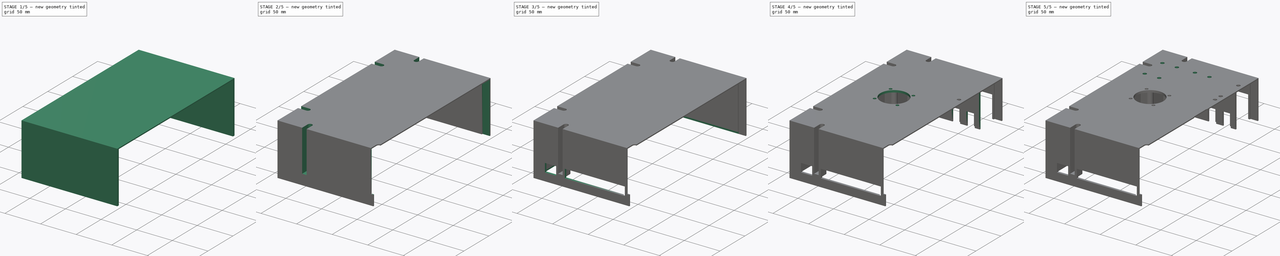
[diagram: build sequence overview — one tinted view per stage of 5, left to right]
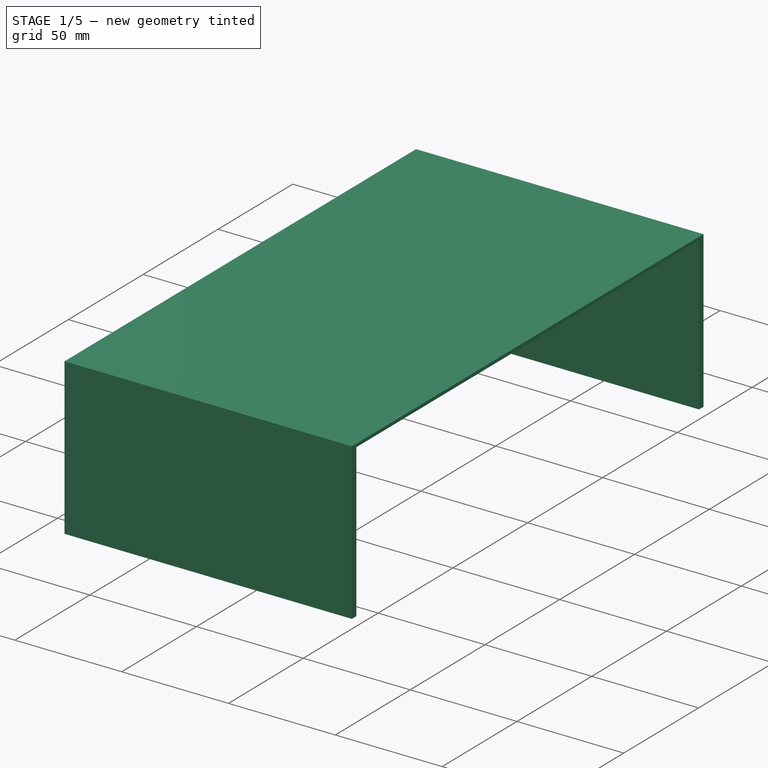
[diagram: stage 1 of 5 — iso view after this stage's code; geometry added in this stage tinted green]
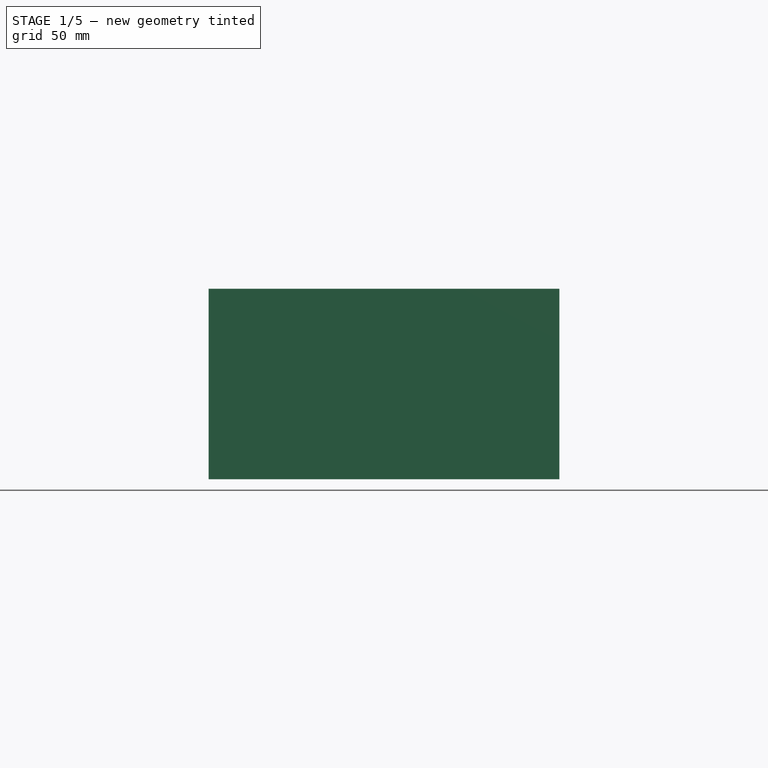
[diagram: stage 1 of 5 — front view after this stage's code; geometry added in this stage tinted green]
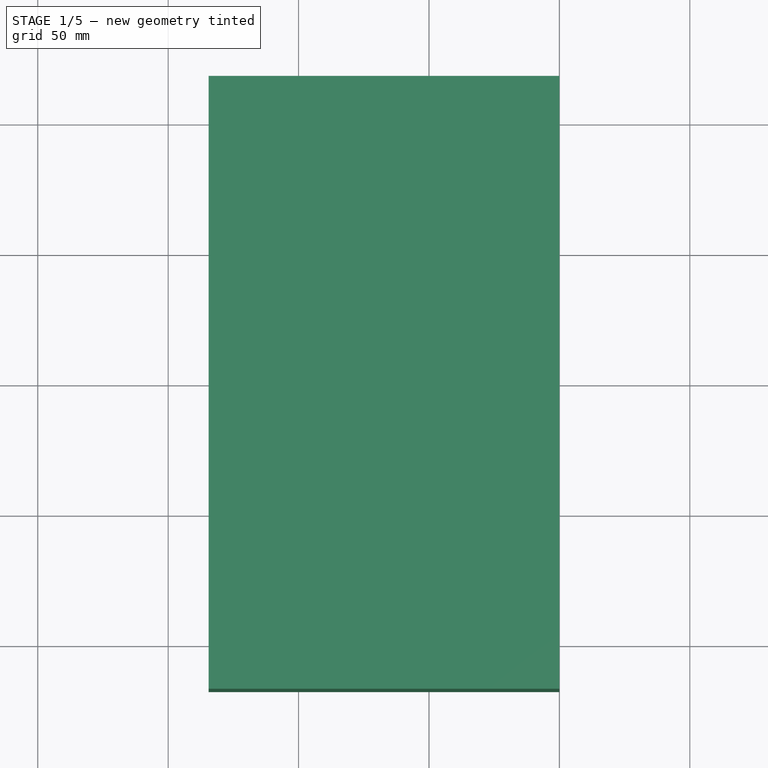
[diagram: stage 1 of 5 — top view after this stage's code; geometry added in this stage tinted green]
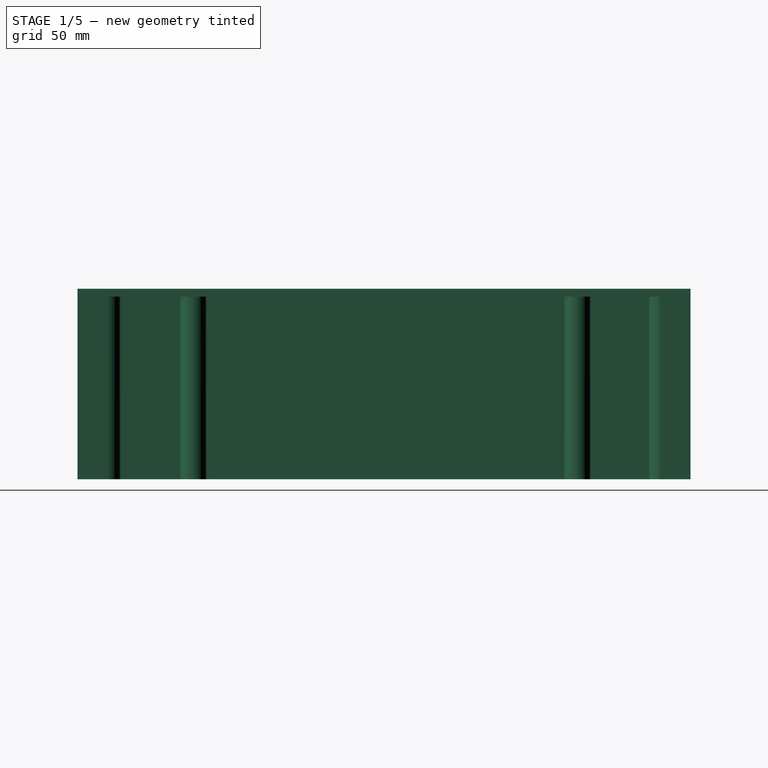
[diagram: stage 1 of 5 — right view after this stage's code; geometry added in this stage tinted green]
FCSTD DOCUMENT  (FreeCAD 0.19R24276 (Git))
Label: switchboard_case_left_top_part
License: All rights reserved
LicenseURL: http://en.wikipedia.org/wiki/All_rights_reserved
objects: Sketcher::SketchObject×17, PartDesign::Pocket×14, PartDesign::Pad×2, PartDesign::Hole×1, PartDesign::Body×1
note: 52 computed .brp shape members not serialized (recipe doc carries the construction recipe); baked Part::Feature solids carry a one-line shape summary decoded from their .brp

FEATURE [Sketcher::SketchObject] Sketch  label="base"
  FullyConstrained = false
  MapMode = 5
  Placement = pos=(0,0,19.5) rot=(1,0,0;3.14159rad)
  sketch-geometry (4):
    g0: LineSegment StartX=-134.5 StartY=117.5 StartZ=0 EndX=0 EndY=117.5 EndZ=0
    g1: LineSegment StartX=0 StartY=117.5 StartZ=0 EndX=0 EndY=-117.5 EndZ=0
    g2: LineSegment StartX=0 StartY=-117.5 StartZ=0 EndX=-134.5 EndY=-117.5 EndZ=0
    g3: LineSegment StartX=-134.5 StartY=-117.5 StartZ=0 EndX=-134.5 EndY=117.5 EndZ=0
  constraints (11):
    c: Coincident(g0,g1)
    c: Coincident(g1,g2)
    c: Coincident(g2,g3)
    c: Coincident(g3,g0)
    c: Horizontal(g0)
    c: Horizontal(g2)
    c: Vertical(g1)
    c: Vertical(g3)
    c: DistanceY(g-1,g0) = 117.5
    c: DistanceY(g2,g-1) = 117.5
    c: DistanceX(g0,g-1) = 134.5
FEATURE [PartDesign::Pad] Pad  label="base_pad"
  Direction = (1,1,1)
  Length = 3
  Length2 = 100
  Placement = pos=(0,0,19.5) rot=(1,0,0;3.14159rad)
  Profile = -> Sketch
  Type = 0
FEATURE [Sketcher::SketchObject] Sketch001  label="junction"
  FullyConstrained = true
  MapMode = 5
  Placement = pos=(0,0,19.5) rot=(0.57735,-0.57735,0.57735;4.18879rad)
  Support = -> [Pad]
  sketch-geometry (4):
    g0: LineSegment StartX=114.5 StartY=3 StartZ=0 EndX=-114.5 EndY=3 EndZ=0
    g1: LineSegment StartX=-114.5 StartY=3 StartZ=0 EndX=-114.5 EndY=1.5 EndZ=0
    g2: LineSegment StartX=-114.5 StartY=1.5 StartZ=0 EndX=114.5 EndY=1.5 EndZ=0
    g3: LineSegment StartX=114.5 StartY=1.5 StartZ=0 EndX=114.5 EndY=3 EndZ=0
  constraints (12):
    c: Coincident(g0,g1)
    c: Coincident(g1,g2)
    c: Coincident(g2,g3)
    c: Coincident(g3,g0)
    c: Horizontal(g0)
    c: Horizontal(g2)
    c: Vertical(g1)
    c: Vertical(g3)
    c: DistanceX(g-1,g2) = 114.5
    c: DistanceX(g1,g-1) = 114.5
    c: DistanceY(g3,g3) = 1.5
    c: DistanceY(g-1,g2) = 1.5
FEATURE [PartDesign::Pocket] Pocket  label="junction_pocket"
  BaseFeature = -> Pad
  Length = 10
  Length2 = 100
  Placement = pos=(0,0,19.5) rot=(1,0,0;3.14159rad)
  Profile = -> Sketch001
  Type = 0
FEATURE [Sketcher::SketchObject] Sketch003  label="wall"
  FullyConstrained = false
  MapMode = 5
  Placement = pos=(0,0,16.5) rot=(1,0,0;3.14159rad)
  Support = -> [Pocket]
  sketch-geometry (24):
    g0: LineSegment StartX=0 StartY=117.5 StartZ=0 EndX=-134.5 EndY=117.5 EndZ=0
    g1: LineSegment StartX=-134.5 StartY=117.5 StartZ=0 EndX=-134.5 EndY=-117.5 EndZ=0
    g2: LineSegment StartX=-134.5 StartY=-117.5 StartZ=0 EndX=0 EndY=-117.5 EndZ=0
    g3: LineSegment StartX=0 StartY=117.5 StartZ=0 EndX=0 EndY=114.5 EndZ=0
    g4: LineSegment StartX=0 StartY=114.5 StartZ=0 EndX=-91.7972 EndY=114.5 EndZ=0
    g5: LineSegment StartX=-131.5 StartY=114.5 StartZ=0 EndX=-131.5 EndY=78.1048 EndZ=0
    g6: LineSegment StartX=-131.5 StartY=-114.5 StartZ=0 EndX=-101.732 EndY=-114.5 EndZ=0
    g7: LineSegment StartX=0 StartY=-117.5 StartZ=0 EndX=4.26e-14 EndY=-114.5 EndZ=0
    g8: ArcOfCircle CenterX=-96.7972 CenterY=106.1 CenterZ=0 NormalX=0 NormalY=0 NormalZ=1 AngleXU=0 Radius=5 StartAngle=3.14159 EndAngle=6.28319
    g9: ArcOfCircle CenterX=-123.1 CenterY=73.1048 CenterZ=0 NormalX=0 NormalY=0 NormalZ=1 AngleXU=0 Radius=5 StartAngle=4.71239 EndAngle=7.85398
    g10: ArcOfCircle CenterX=-123.1 CenterY=-74.1662 CenterZ=0 NormalX=0 NormalY=0 NormalZ=1 AngleXU=0 Radius=5 StartAngle=4.71239 EndAngle=7.85398
    g11: ArcOfCircle CenterX=-96.7577 CenterY=-106.609 CenterZ=0 NormalX=0 NormalY=0 NormalZ=1 AngleXU=0 Radius=5 StartAngle=0.102007 EndAngle=3.03959
    g12: LineSegment StartX=-101.797 StartY=106.1 StartZ=0 EndX=-101.797 EndY=114.5 EndZ=0
    g13: LineSegment StartX=-91.7972 StartY=106.1 StartZ=0 EndX=-91.7972 EndY=114.5 EndZ=0
    g14: LineSegment StartX=-101.797 StartY=114.5 StartZ=0 EndX=-131.5 EndY=114.5 EndZ=0
    g15: LineSegment StartX=-123.1 StartY=78.1048 StartZ=0 EndX=-131.5 EndY=78.1048 EndZ=0
    g16: LineSegment StartX=-123.1 StartY=68.1048 StartZ=0 EndX=-131.5 EndY=68.1048 EndZ=0
    g17: LineSegment StartX=-131.5 StartY=68.1048 StartZ=0 EndX=-131.5 EndY=-69.1662 EndZ=0
    g18: LineSegment StartX=-123.1 StartY=-69.1662 StartZ=0 EndX=-131.5 EndY=-69.1662 EndZ=0
    g19: LineSegment StartX=-123.1 StartY=-79.1662 StartZ=0 EndX=-131.5 EndY=-79.1662 EndZ=0
    g20: LineSegment StartX=-131.5 StartY=-79.1662 StartZ=0 EndX=-131.5 EndY=-114.5 EndZ=0
    g21: LineSegment StartX=-101.732 StartY=-106.1 StartZ=0 EndX=-101.732 EndY=-114.5 EndZ=0
    g22: LineSegment StartX=-91.7837 StartY=-106.1 StartZ=0 EndX=-91.7837 EndY=-114.5 EndZ=0
    g23: LineSegment StartX=-91.7837 StartY=-114.5 StartZ=0 EndX=4.26e-14 EndY=-114.5 EndZ=0
  constraints (62):
    c: PointOnObject(g0,g-2)
    c: Horizontal(g0)
    c: DistanceY(g-1,g0) = 117.5
    c: DistanceX(g0,g0) = 134.5
    c: Coincident(g1,g0)
    c: Vertical(g1)
    c: DistanceY(g1,g1) = 235
    c: Coincident(g2,g1)
    c: PointOnObject(g2,g-2)
    c: Horizontal(g2)
    c: Coincident(g3,g0)
    c: Vertical(g3)
    c: DistanceY(g3,g3) = 3
    c: Coincident(g4,g3)
    c: Horizontal(g4)
    c: DistanceX(g14,g4) = 131.5
    c: Coincident(g5,g14)
    c: Vertical(g5)
    c: DistanceY(g20,g5) = 229
    c: Coincident(g6,g20)
    c: Horizontal(g6)
    c: DistanceX(g6,g23) = 131.5
    c: Coincident(g7,g2)
    c: Coincident(g7,g23)
    c: Radius(g8) = 5
    c: Radius(g9) = 5
    c: Radius(g10) = 5
    c: Radius(g11) = 5
    c: Vertical(g12)
    c: Vertical(g13)
    c: Coincident(g8,g12)
    c: Tangent(g8,g13) = -1.5708
    c: Coincident(g4,g13)
    c: Coincident(g14,g12)
    c: Tangent(g4,g14)
    c: Horizontal(g15)
    c: Horizontal(g16)
    c: Tangent(g9,g16) = 1.5708
    c: Tangent(g9,g15) = -1.5708
    c: Coincident(g5,g15)
    c: Coincident(g17,g16)
    c: Tangent(g5,g17)
    c: Horizontal(g18)
    c: Horizontal(g19)
    c: Tangent(g10,g19) = 1.5708
    c: Tangent(g10,g18) = -1.5708
    c: Coincident(g17,g18)
    c: Coincident(g20,g19)
    c: Tangent(g17,g20)
    c: Vertical(g21)
    c: Vertical(g22)
    c: Coincident(g11,g22)
    c: Coincident(g11,g21)
    c: Coincident(g6,g21)
    c: Coincident(g23,g22)
    c: Tangent(g6,g23)
    c: DistanceY(g8,g4) = 8.4
    c: DistanceY(g8,g12) = 8.4
    c: DistanceX(g15,g15) = 8.4
    c: DistanceX(g18,g18) = 8.4
    c: DistanceY(g21,g21) = 8.4
    c: DistanceY(g22,g22) = 8.4
FEATURE [PartDesign::Pad] Pad001  label="wall_pad"
  BaseFeature = -> Pocket
  Direction = (1,1,1)
  Length = 70
  Length2 = 100
  Placement = pos=(0,0,19.5) rot=(1,0,0;3.14159rad)
  Profile = -> Sketch003
  Type = 0
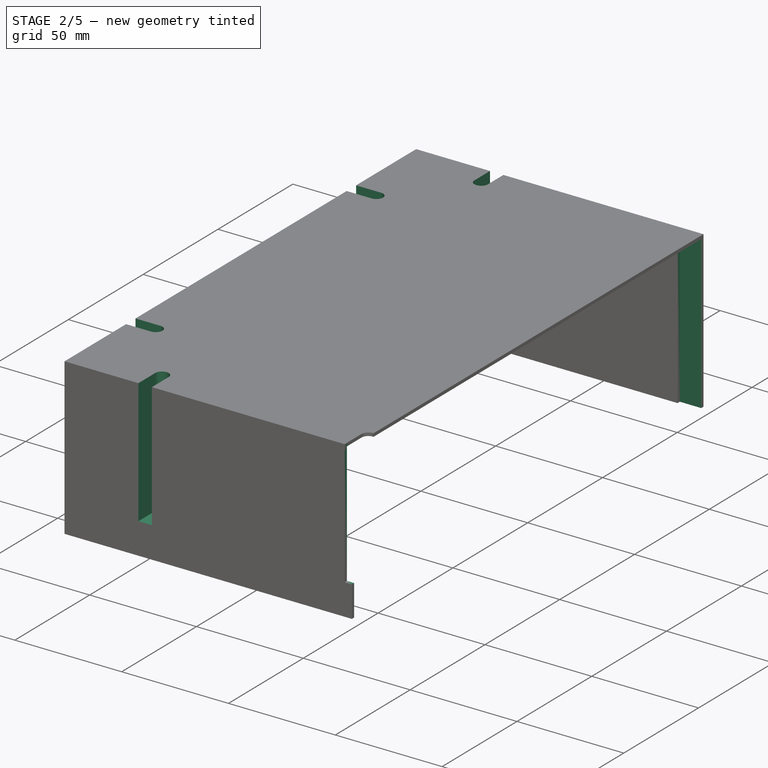
[diagram: stage 2 of 5 — iso view after this stage's code; geometry added in this stage tinted green]
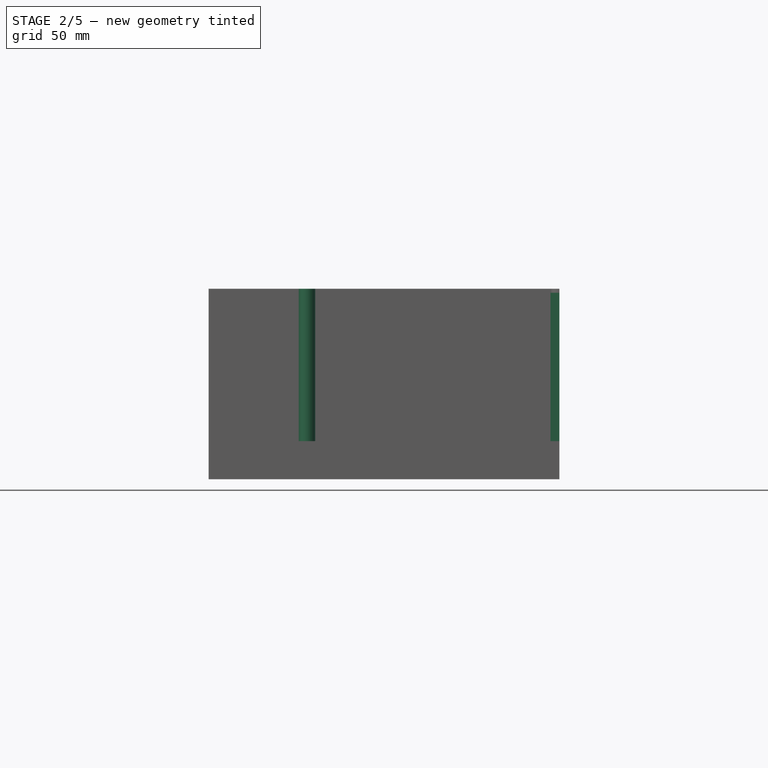
[diagram: stage 2 of 5 — front view after this stage's code; geometry added in this stage tinted green]
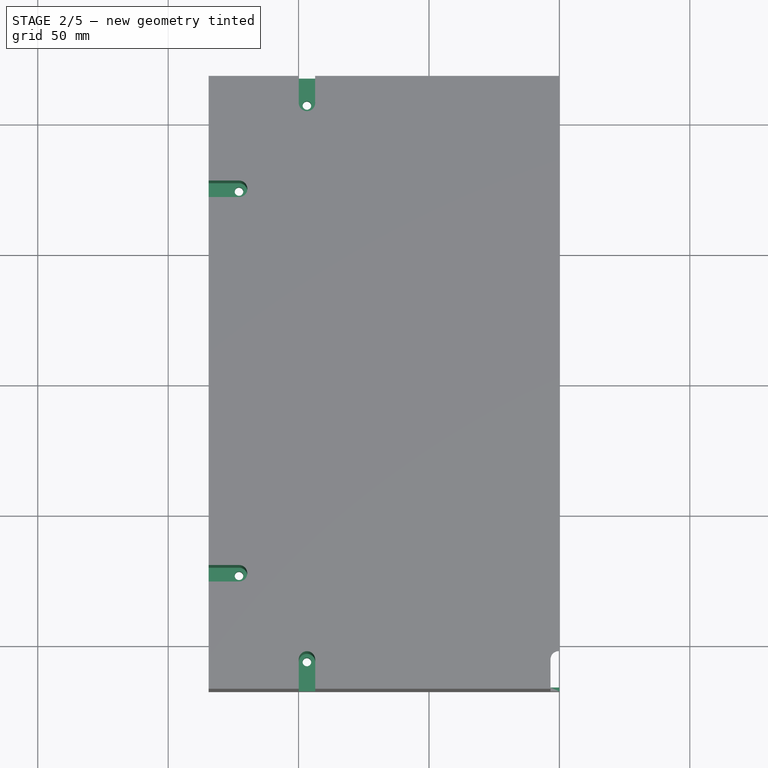
[diagram: stage 2 of 5 — top view after this stage's code; geometry added in this stage tinted green]
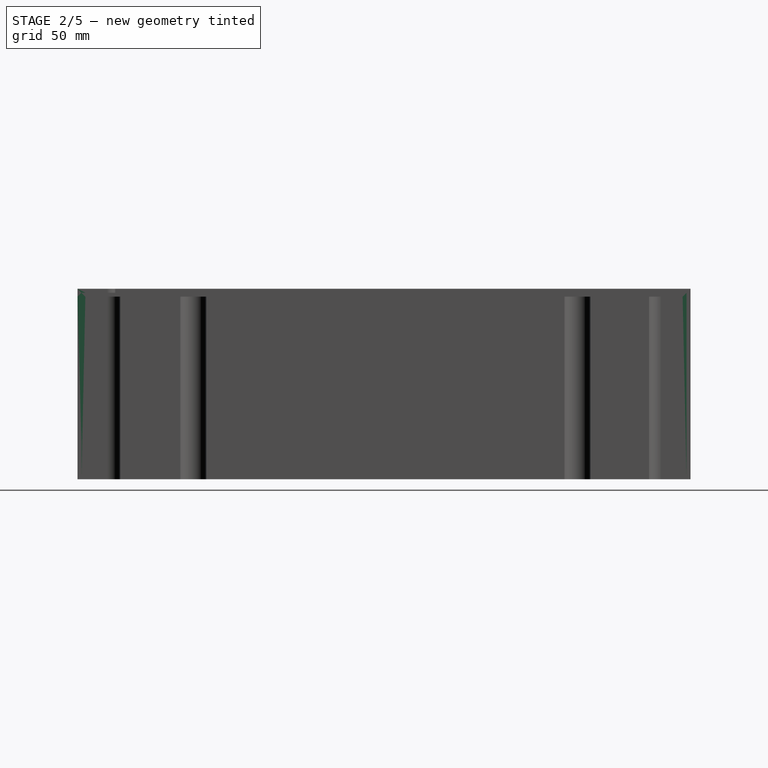
[diagram: stage 2 of 5 — right view after this stage's code; geometry added in this stage tinted green]
FEATURE [Sketcher::SketchObject] Sketch004  label="holes"
  FullyConstrained = false
  MapMode = 5
  Placement = pos=(0,0,-53.5) rot=(1,0,0;3.14159rad)
  Support = -> [Pad001]
  sketch-geometry (5):
    g0: Circle CenterX=-96.82 CenterY=106.2 CenterZ=0 NormalX=0 NormalY=0 NormalZ=1 AngleXU=0 Radius=1.65
    g1: Circle CenterX=-122.85 CenterY=73.15 CenterZ=0 NormalX=0 NormalY=0 NormalZ=1 AngleXU=0 Radius=1.65
    g2: Circle CenterX=-122.85 CenterY=-74.2 CenterZ=0 NormalX=0 NormalY=0 NormalZ=1 AngleXU=0 Radius=1.65
    g3: Circle CenterX=-96.8106 CenterY=-107.2 CenterZ=0 NormalX=0 NormalY=0 NormalZ=1 AngleXU=0 Radius=1.65
    g4: Circle CenterX=-0.274356 CenterY=106.68 CenterZ=0 NormalX=0 NormalY=0 NormalZ=1 AngleXU=0 Radius=1.65
  constraints (12):
    c: Radius(g0) = 1.65
    c: Radius(g1) = 1.65
    c: Radius(g2) = 1.65
    c: Radius(g3) = 1.65
    c: Radius(g4) = 1.65
    c: DistanceY(g-1,g0) = 106.2
    c: DistanceX(g0,g-1) = 96.82
    c: DistanceY(g3) = -107.2
    c: DistanceY(g2,g-1) = 74.2
    c: DistanceX(g2,g-1) = 122.85
    c: DistanceY(g-1,g1) = 73.15
    c: DistanceX(g1,g-1) = 122.85
FEATURE [PartDesign::Hole] Hole  label="holes_hole"
  BaseFeature = -> Pad001
  Depth = 25
  DepthType = 1
  Diameter = 3.3
  DrillForDepth = false
  DrillPoint = 1
  DrillPointAngle = 118
  HoleCutCountersinkAngle = 90
  HoleCutCustomValues = false
  HoleCutDepth = 0
  HoleCutDiameter = 6.1
  HoleCutType = 0
  ModelActualThread = false
  Placement = pos=(0,0,19.5) rot=(1,0,0;3.14159rad)
  Profile = -> Sketch004
  Tapered = false
  TaperedAngle = 90
  ThreadAngle = 0
  ThreadClass = 0
  ThreadCutOffInner = 0
  ThreadCutOffOuter = 0
  ThreadDirection = 0
  ThreadFit = 0
  ThreadPitch = 0
  ThreadSize = 0
  ThreadType = 0
  Threaded = false
FEATURE [Sketcher::SketchObject] Sketch005  label="junction_top"
  FullyConstrained = false
  MapMode = 5
  Placement = pos=(0,-114.5,19.5) rot=(-1,0,0;1.5708rad)
  Support = -> [Hole]
  sketch-geometry (4):
    g0: LineSegment StartX=0 StartY=80.3089 StartZ=0 EndX=-10 EndY=80.3089 EndZ=0
    g1: LineSegment StartX=-10 StartY=80.3089 StartZ=0 EndX=-10 EndY=1.5 EndZ=0
    g2: LineSegment StartX=-10 StartY=1.5 StartZ=0 EndX=0 EndY=1.5 EndZ=0
    g3: LineSegment StartX=0 StartY=1.5 StartZ=0 EndX=0 EndY=80.3089 EndZ=0
  constraints (10):
    c: Coincident(g0,g1)
    c: Coincident(g1,g2)
    c: Coincident(g2,g3)
    c: Coincident(g3,g0)
    c: Horizontal(g0)
    c: Horizontal(g2)
    c: Vertical(g1)
    c: Vertical(g3)
    c: PointOnObject(g0,g-2)
    c: DistanceY(g-1,g2) = 1.5
FEATURE [Sketcher::SketchObject] Sketch006  label="junction_bottom"
  FullyConstrained = false
  MapMode = 5
  Placement = pos=(0,114.5,19.5) rot=(0,0.707107,-0.707107;3.14159rad)
  sketch-geometry (4):
    g0: LineSegment StartX=10 StartY=75 StartZ=0 EndX=0 EndY=75 EndZ=0
    g1: LineSegment StartX=0 StartY=75 StartZ=0 EndX=0 EndY=1.5 EndZ=0
    g2: LineSegment StartX=0 StartY=1.5 StartZ=0 EndX=10 EndY=1.5 EndZ=0
    g3: LineSegment StartX=10 StartY=1.5 StartZ=0 EndX=10 EndY=75 EndZ=0
  constraints (10):
    c: Coincident(g0,g1)
    c: Coincident(g1,g2)
    c: Coincident(g2,g3)
    c: Coincident(g3,g0)
    c: Horizontal(g0)
    c: Horizontal(g2)
    c: Vertical(g1)
    c: Vertical(g3)
    c: PointOnObject(g1,g-2)
    c: DistanceY(g-1,g1) = 1.5
FEATURE [Sketcher::SketchObject] Sketch007  label="mounting_hole_top"
  FullyConstrained = false
  MapMode = 5
  Placement = pos=(0,0,19.5) rot=(0,0,1;0rad)
  sketch-geometry (20):
    g0: ArcOfCircle CenterX=-96.7817 CenterY=107.156 CenterZ=0 NormalX=0 NormalY=0 NormalZ=1 AngleXU=0 Radius=3.15 StartAngle=3.10874 EndAngle=6.32239
    g1: ArcOfCircle CenterX=-122.794 CenterY=74.231 CenterZ=0 NormalX=0 NormalY=0 NormalZ=1 AngleXU=0 Radius=3.15 StartAngle=4.7097 EndAngle=7.84461
    g2: ArcOfCircle CenterX=-122.815 CenterY=-73.206 CenterZ=0 NormalX=0 NormalY=0 NormalZ=1 AngleXU=0 Radius=3.15 StartAngle=4.70962 EndAngle=7.82666
    g3: ArcOfCircle CenterX=-96.7784 CenterY=-106.246 CenterZ=0 NormalX=0 NormalY=0 NormalZ=1 AngleXU=0 Radius=3.15 StartAngle=0.00216858 EndAngle=3.13942
    g4: LineSegment StartX=-122.764 StartY=77.3809 StartZ=0 EndX=-140.109 EndY=77.3809 EndZ=0
    g5: LineSegment StartX=-122.802 StartY=71.0811 StartZ=0 EndX=-140.109 EndY=71.0811 EndZ=0
    g6: LineSegment StartX=-140.109 StartY=71.0811 StartZ=0 EndX=-140.109 EndY=77.3809 EndZ=0
    g7: LineSegment StartX=-122.729 StartY=-70.0572 StartZ=0 EndX=-140.072 EndY=-70.0572 EndZ=0
    g8: LineSegment StartX=-122.824 StartY=-76.356 StartZ=0 EndX=-140.072 EndY=-76.356 EndZ=0
    g9: LineSegment StartX=-140.072 StartY=-76.356 StartZ=0 EndX=-140.072 EndY=-70.0572 EndZ=0
    g10: LineSegment StartX=-99.93 StartY=107.26 StartZ=0 EndX=-99.93 EndY=120.57 EndZ=0
    g11: LineSegment StartX=-93.6341 StartY=107.28 StartZ=0 EndX=-93.6341 EndY=120.57 EndZ=0
    g12: LineSegment StartX=-93.6341 StartY=120.57 StartZ=0 EndX=-99.93 EndY=120.57 EndZ=0
    g13: LineSegment StartX=-99.9284 StartY=-106.239 StartZ=0 EndX=-99.9284 EndY=-124.719 EndZ=0
    g14: LineSegment StartX=-93.6284 StartY=-106.239 StartZ=0 EndX=-93.6284 EndY=-124.719 EndZ=0
    g15: LineSegment StartX=-93.6284 StartY=-124.719 StartZ=0 EndX=-99.9284 EndY=-124.719 EndZ=0
    g16: ArcOfCircle CenterX=-0.25 CenterY=-106.2 CenterZ=0 NormalX=0 NormalY=0 NormalZ=1 AngleXU=0 Radius=3.15 StartAngle=2.2e-15 EndAngle=3.14159
    g17: LineSegment StartX=2.9 StartY=-106.2 StartZ=0 EndX=2.9 EndY=-129.57 EndZ=0
    g18: LineSegment StartX=-3.4 StartY=-106.2 StartZ=0 EndX=-3.4 EndY=-129.57 EndZ=0
    g19: LineSegment StartX=-3.4 StartY=-129.57 StartZ=0 EndX=2.9 EndY=-129.57 EndZ=0
  constraints (47):
    c: Radius(g0) = 3.15
    c: Radius(g1) = 3.15
    c: Radius(g2) = 3.15
    c: Radius(g3) = 3.15
    c: Horizontal(g4)
    c: Horizontal(g5)
    c: Coincident(g6,g5)
    c: Coincident(g6,g4)
    c: Vertical(g6)
    c: Horizontal(g7)
    c: Horizontal(g8)
    c: Coincident(g9,g8)
    c: Coincident(g9,g7)
    c: Vertical(g9)
    c: Coincident(g1,g5)
    c: Coincident(g1,g4)
    c: Coincident(g2,g8)
    c: Coincident(g2,g7)
    c: Vertical(g10)
    c: Vertical(g11)
    c: Coincident(g12,g11)
    c: Coincident(g12,g10)
    c: Horizontal(g12)
    c: Coincident(g0,g10)
    c: Coincident(g0,g11)
    c: Vertical(g13)
    c: Vertical(g14)
    c: Coincident(g15,g14)
    c: Coincident(g15,g13)
    c: Horizontal(g15)
    c: Coincident(g3,g14)
    c: Coincident(g3,g13)
    c: Radius(g16) = 3.15
    c: Vertical(g17)
    c: Vertical(g18)
    c: Coincident(g19,g18)
    c: Coincident(g19,g17)
    c: Horizontal(g19)
    c: Tangent(g16,g17) = 1.5708
    c: Tangent(g16,g18) = -1.5708
    c: DistanceY(g13,g13) = 18.48
    c: DistanceY(g14,g14) = 18.48
    c: DistanceY(g10,g10) = 13.31
    c: DistanceY(g11,g11) = 13.29
    c: DistanceY(g17,g17) = 23.37
    c: DistanceY(g16,g-1) = 106.2
    c: DistanceX(g16,g-1) = 3.4
FEATURE [PartDesign::Pocket] Pocket003  label="mounting_hole_top_pocket"
  BaseFeature = -> Hole
  Length = 58.4
  Length2 = 100
  Placement = pos=(0,0,19.5) rot=(1,0,0;3.14159rad)
  Profile = -> Sketch007
  Type = 0
FEATURE [Sketcher::SketchObject] Sketch008  label="mounting_hole_edge_bottom"
  FullyConstrained = false
  MapMode = 5
  Placement = pos=(0,5.4e-14,-53.5) rot=(1,0,0;3.14159rad)
  sketch-geometry (4):
    g0: LineSegment StartX=-133 StartY=116 StartZ=0 EndX=0 EndY=116 EndZ=0
    g1: LineSegment StartX=0 StartY=116 StartZ=0 EndX=0 EndY=-116 EndZ=0
    g2: LineSegment StartX=0 StartY=-116 StartZ=0 EndX=-133 EndY=-116 EndZ=0
    g3: LineSegment StartX=-133 StartY=-116 StartZ=0 EndX=-133 EndY=116 EndZ=0
  constraints (11):
    c: Coincident(g0,g1)
    c: Coincident(g1,g2)
    c: Coincident(g2,g3)
    c: Coincident(g3,g0)
    c: Horizontal(g0)
    c: Horizontal(g2)
    c: Vertical(g1)
    c: Vertical(g3)
    c: DistanceX(g0,g0) = 133
    c: DistanceY(g-1,g0) = 116
    c: DistanceY(g1,g-1) = 116
FEATURE [PartDesign::Pocket] Pocket005  label="junction_top_pocket"
  BaseFeature = -> Pocket003
  Length = 1.5
  Length2 = 100
  Placement = pos=(0,0,19.5) rot=(1,0,0;3.14159rad)
  Profile = -> Sketch005
  Type = 0
FEATURE [PartDesign::Pocket] Pocket006  label="junction_bottom_pocket"
  BaseFeature = -> Pocket005
  Length = 1.5
  Length2 = 100
  Placement = pos=(0,0,19.5) rot=(1,0,0;3.14159rad)
  Profile = -> Sketch006
  Type = 0
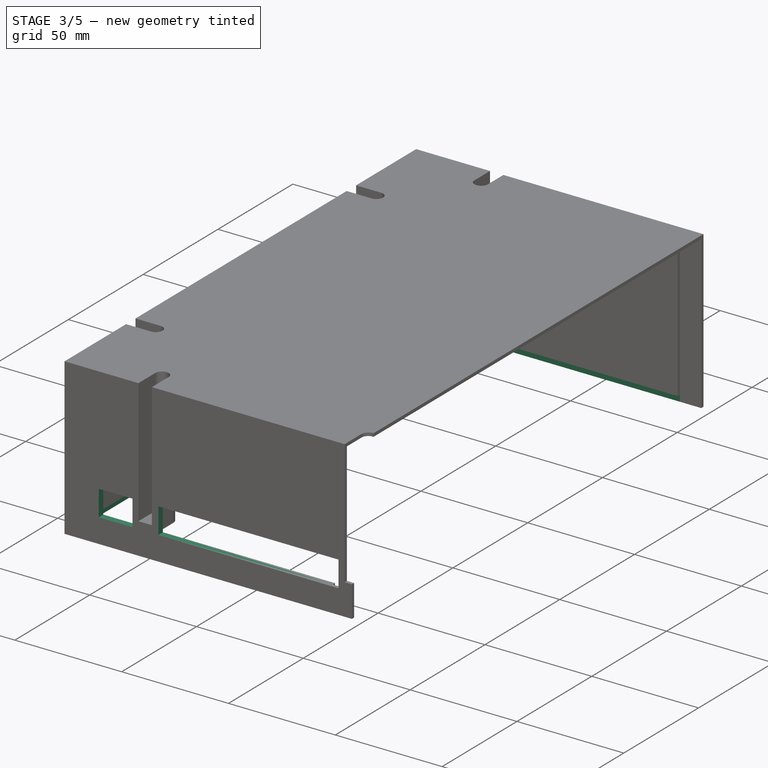
[diagram: stage 3 of 5 — iso view after this stage's code; geometry added in this stage tinted green]
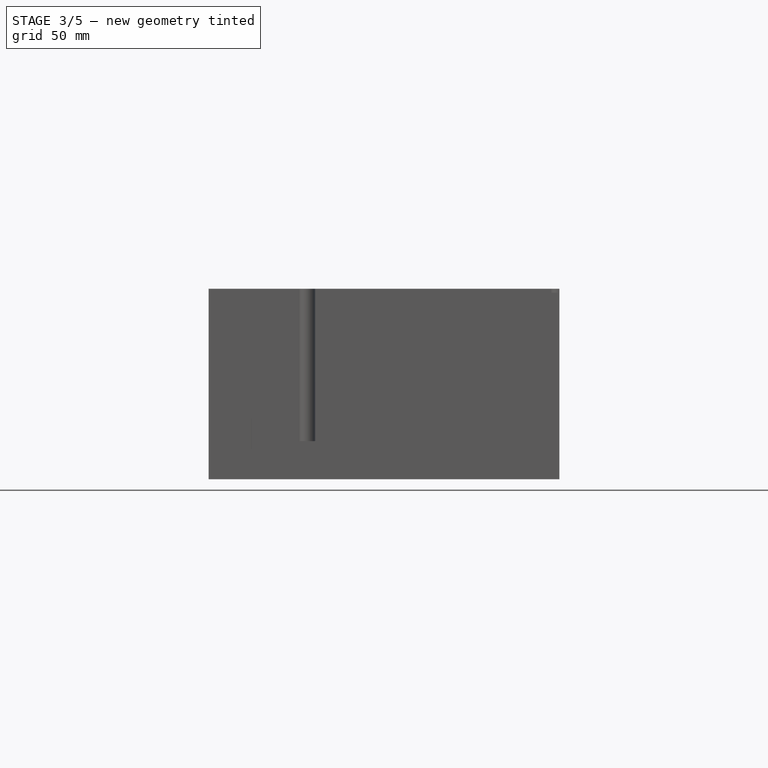
[diagram: stage 3 of 5 — front view after this stage's code; geometry added in this stage tinted green]
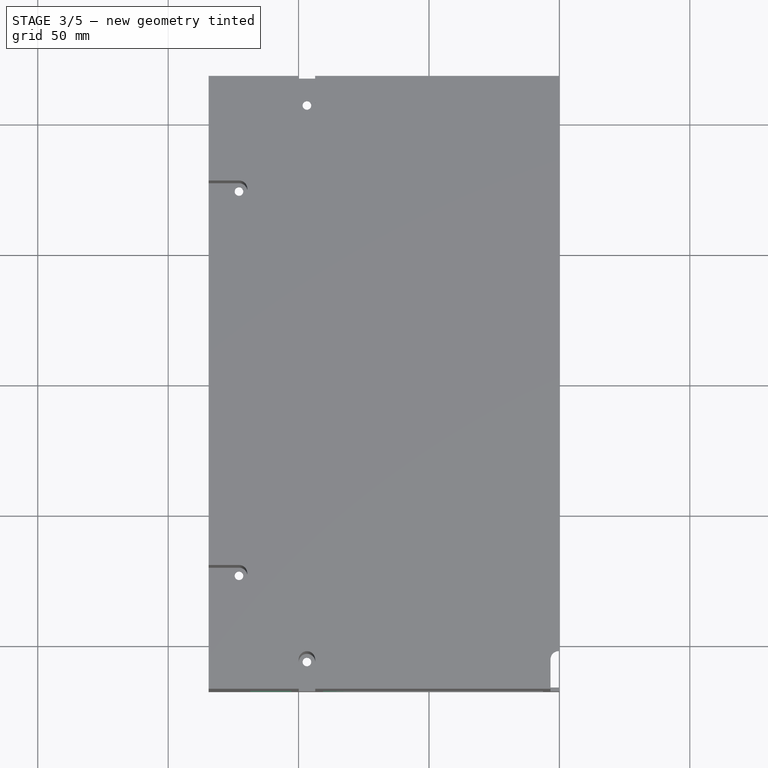
[diagram: stage 3 of 5 — top view after this stage's code; geometry added in this stage tinted green]
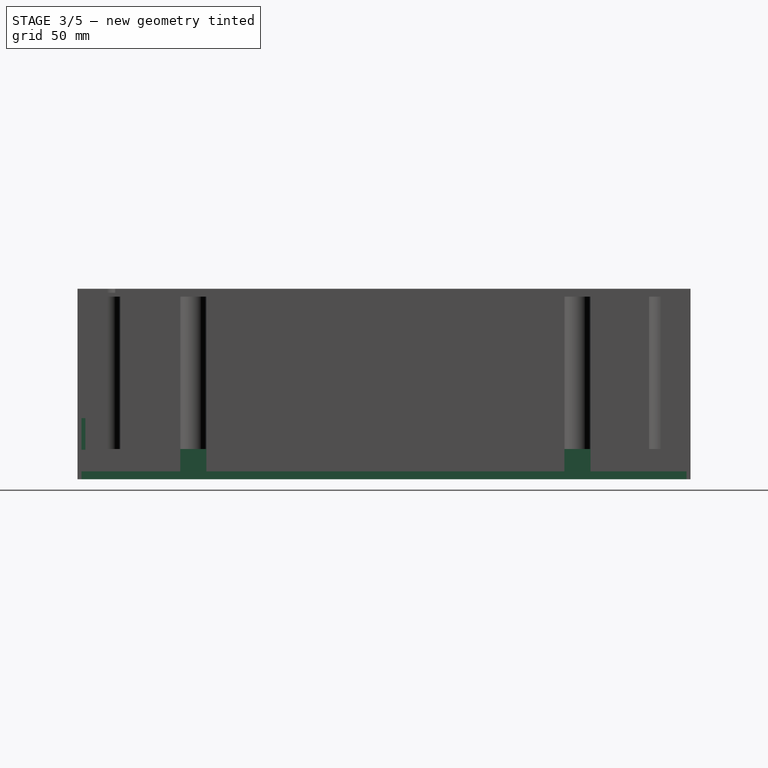
[diagram: stage 3 of 5 — right view after this stage's code; geometry added in this stage tinted green]
FEATURE [PartDesign::Pocket] Pocket007  label="mounting_hole_edge_bottom_pocket"
  BaseFeature = -> Pocket006
  Length = 3
  Length2 = 100
  Placement = pos=(0,0,19.5) rot=(1,0,0;3.14159rad)
  Profile = -> Sketch008
  Type = 0
FEATURE [Sketcher::SketchObject] Sketch009  label="mounting_hole_bottom"
  FullyConstrained = true
  MapMode = 5
  Placement = pos=(0,5.18e-14,-50.5) rot=(1,0,0;3.14159rad)
  Support = -> [Pocket007]
  sketch-geometry (4):
    g0: LineSegment StartX=-131.5 StartY=114.5 StartZ=0 EndX=0 EndY=114.5 EndZ=0
    g1: LineSegment StartX=0 StartY=114.5 StartZ=0 EndX=0 EndY=-114.5 EndZ=0
    g2: LineSegment StartX=0 StartY=-114.5 StartZ=0 EndX=-131.5 EndY=-114.5 EndZ=0
    g3: LineSegment StartX=-131.5 StartY=-114.5 StartZ=0 EndX=-131.5 EndY=114.5 EndZ=0
  constraints (12):
    c: Coincident(g0,g1)
    c: Coincident(g1,g2)
    c: Coincident(g2,g3)
    c: Coincident(g3,g0)
    c: Horizontal(g0)
    c: Horizontal(g2)
    c: Vertical(g1)
    c: Vertical(g3)
    c: PointOnObject(g1,g-2)
    c: DistanceX(g0,g0) = 131.5
    c: DistanceY(g-1,g0) = 114.5
    c: DistanceY(g1,g-1) = 114.5
FEATURE [PartDesign::Pocket] Pocket008  label="mounting_hole_bottom_pocket"
  BaseFeature = -> Pocket007
  Length = 8.6
  Length2 = 100
  Placement = pos=(0,0,19.5) rot=(1,0,0;3.14159rad)
  Profile = -> Sketch009
  Type = 0
FEATURE [Sketcher::SketchObject] Sketch010  label="front_hole_1"
  FullyConstrained = true
  MapMode = 5
  Placement = pos=(0,-117.5,19.5) rot=(0,0.707107,-0.707107;3.14159rad)
  Support = -> [Pocket008]
  sketch-geometry (8):
    g0: LineSegment StartX=118.5 StartY=49.6 StartZ=0 EndX=102.7 EndY=49.6 EndZ=0
    g1: LineSegment StartX=102.7 StartY=49.6 StartZ=0 EndX=102.7 EndY=61.7 EndZ=0
    g2: LineSegment StartX=102.7 StartY=61.7 StartZ=0 EndX=118.5 EndY=61.7 EndZ=0
    g3: LineSegment StartX=118.5 StartY=61.7 StartZ=0 EndX=118.5 EndY=49.6 EndZ=0
    g4: LineSegment StartX=90.6 StartY=49.6 StartZ=0 EndX=6.3 EndY=49.6 EndZ=0
    g5: LineSegment StartX=6.3 StartY=49.6 StartZ=0 EndX=6.3 EndY=61.7 EndZ=0
    g6: LineSegment StartX=6.3 StartY=61.7 StartZ=0 EndX=90.6 EndY=61.7 EndZ=0
    g7: LineSegment StartX=90.6 StartY=61.7 StartZ=0 EndX=90.6 EndY=49.6 EndZ=0
  constraints (24):
    c: Coincident(g0,g1)
    c: Coincident(g1,g2)
    c: Coincident(g2,g3)
    c: Coincident(g3,g0)
    c: Horizontal(g0)
    c: Horizontal(g2)
    c: Vertical(g1)
    c: Vertical(g3)
    c: DistanceY(g-1,g0) = 49.6
    c: DistanceY(g1,g1) = 12.1
    c: DistanceX(g0,g0) = 15.8
    c: DistanceX(g-1,g0) = 102.7
    c: Coincident(g4,g5)
    c: Coincident(g5,g6)
    c: Coincident(g6,g7)
    c: Coincident(g7,g4)
    c: Horizontal(g4)
    c: Horizontal(g6)
    c: Vertical(g5)
    c: Vertical(g7)
    c: DistanceY(g7,g7) = 12.1
    c: DistanceY(g-1,g4) = 49.6
    c: DistanceX(g6,g6) = 84.3
    c: DistanceX(g-1,g4) = 90.6
FEATURE [PartDesign::Pocket] Pocket009  label="front_hole_1_pocket"
  BaseFeature = -> Pocket008
  Length = 3
  Length2 = 100
  Placement = pos=(0,0,19.5) rot=(1,0,0;3.14159rad)
  Profile = -> Sketch010
  Type = 0
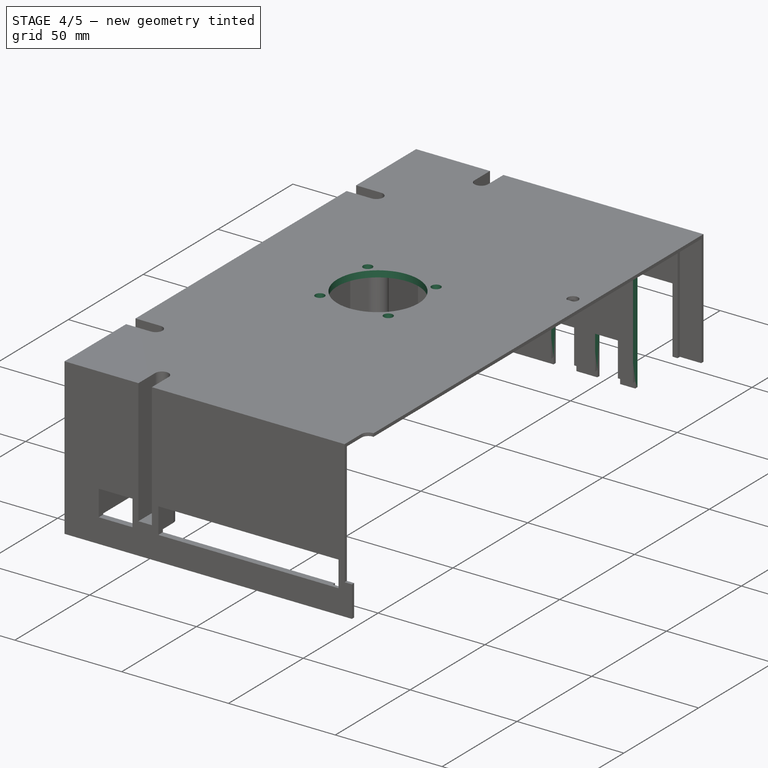
[diagram: stage 4 of 5 — iso view after this stage's code; geometry added in this stage tinted green]
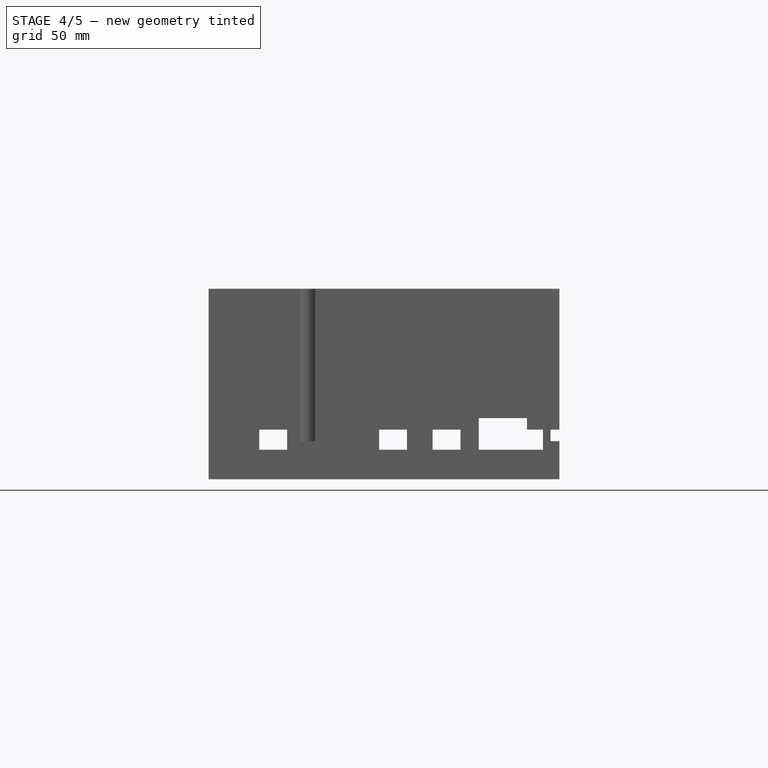
[diagram: stage 4 of 5 — front view after this stage's code; geometry added in this stage tinted green]
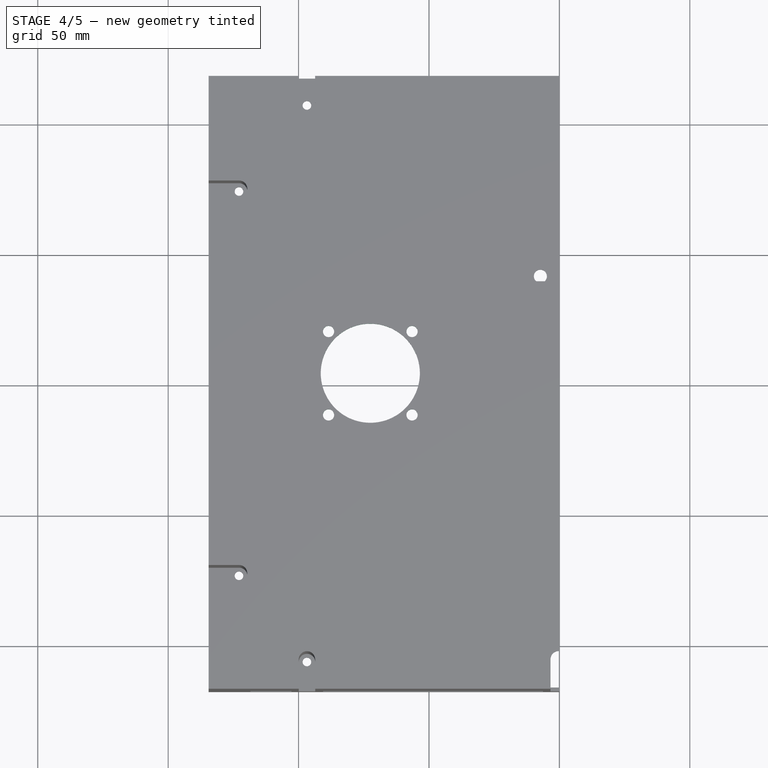
[diagram: stage 4 of 5 — top view after this stage's code; geometry added in this stage tinted green]
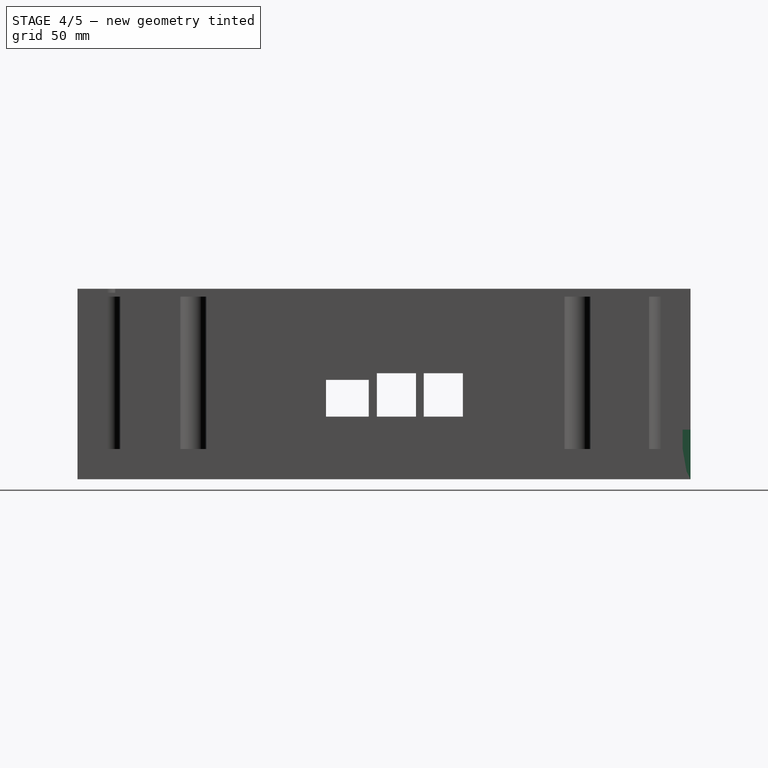
[diagram: stage 4 of 5 — right view after this stage's code; geometry added in this stage tinted green]
FEATURE [Sketcher::SketchObject] Sketch011  label="left_hole"
  FullyConstrained = true
  MapMode = 5
  Placement = pos=(-134.5,0,19.5) rot=(0.57735,0.57735,-0.57735;4.18879rad)
  Support = -> [Pocket009]
  sketch-geometry (12):
    g0: LineSegment StartX=30.25 StartY=32.4 StartZ=0 EndX=15.25 EndY=32.4 EndZ=0
    g1: LineSegment StartX=15.25 StartY=32.4 StartZ=0 EndX=15.25 EndY=49 EndZ=0
    g2: LineSegment StartX=15.25 StartY=49 StartZ=0 EndX=30.25 EndY=49 EndZ=0
    g3: LineSegment StartX=30.25 StartY=49 StartZ=0 EndX=30.25 EndY=32.4 EndZ=0
    g4: LineSegment StartX=12.25 StartY=32.4 StartZ=0 EndX=-2.75 EndY=32.4 EndZ=0
    g5: LineSegment StartX=-2.75 StartY=32.4 StartZ=0 EndX=-2.75 EndY=49 EndZ=0
    g6: LineSegment StartX=-2.75 StartY=49 StartZ=0 EndX=12.25 EndY=49 EndZ=0
    g7: LineSegment StartX=12.25 StartY=49 StartZ=0 EndX=12.25 EndY=32.4 EndZ=0
    g8: LineSegment StartX=-22.25 StartY=49 StartZ=0 EndX=-5.85 EndY=49 EndZ=0
    g9: LineSegment StartX=-5.85 StartY=49 StartZ=0 EndX=-5.85 EndY=34.9 EndZ=0
    g10: LineSegment StartX=-5.85 StartY=34.9 StartZ=0 EndX=-22.25 EndY=34.9 EndZ=0
    g11: LineSegment StartX=-22.25 StartY=34.9 StartZ=0 EndX=-22.25 EndY=49 EndZ=0
  constraints (36):
    c: Coincident(g0,g1)
    c: Coincident(g1,g2)
    c: Coincident(g2,g3)
    c: Coincident(g3,g0)
    c: Horizontal(g0)
    c: Horizontal(g2)
    c: Vertical(g1)
    c: Vertical(g3)
    c: DistanceX(g2,g2) = 15
    c: DistanceY(g1,g1) = 16.6
    c: DistanceX(g-1,g0) = 15.25
    c: DistanceY(g-1,g0) = 32.4
    c: Coincident(g4,g5)
    c: Coincident(g5,g6)
    c: Coincident(g6,g7)
    c: Coincident(g7,g4)
    c: Horizontal(g4)
    c: Horizontal(g6)
    c: Vertical(g5)
    c: Vertical(g7)
    c: DistanceX(g6,g6) = 15
    c: DistanceY(g5,g5) = 16.6
    c: DistanceY(g-1,g4) = 32.4
    c: DistanceX(g4,g0) = 3
    c: Coincident(g8,g9)
    c: Coincident(g9,g10)
    c: Coincident(g10,g11)
    c: Coincident(g11,g8)
    c: Horizontal(g8)
    c: Horizontal(g10)
    c: Vertical(g9)
    c: Vertical(g11)
    c: DistanceX(g8,g8) = 16.4
    c: DistanceY(g9,g9) = 14.1
    c: DistanceY(g5,g8) = 0
    c: DistanceX(g8,g5) = 3.1
FEATURE [PartDesign::Pocket] Pocket010  label="left_hole_pocket"
  BaseFeature = -> Pocket009
  Length = 3
  Length2 = 100
  Placement = pos=(0,0,19.5) rot=(1,0,0;3.14159rad)
  Profile = -> Sketch011
  Type = 0
FEATURE [Sketcher::SketchObject] Sketch012  label="top_hole"
  FullyConstrained = false
  MapMode = 5
  Placement = pos=(0,117.5,19.5) rot=(-1,0,0;1.5708rad)
  Support = -> [Pocket010]
  sketch-geometry (20):
    g0: LineSegment StartX=-104.4 StartY=54 StartZ=0 EndX=-115.1 EndY=54 EndZ=0
    g1: LineSegment StartX=-115.1 StartY=54 StartZ=0 EndX=-115.1 EndY=79 EndZ=0
    g2: LineSegment StartX=-115.1 StartY=79 StartZ=0 EndX=-104.4 EndY=79 EndZ=0
    g3: LineSegment StartX=-104.4 StartY=79 StartZ=0 EndX=-104.4 EndY=54 EndZ=0
    g4: LineSegment StartX=-58.43 StartY=54 StartZ=0 EndX=-69.13 EndY=54 EndZ=0
    g5: LineSegment StartX=-69.13 StartY=54 StartZ=0 EndX=-69.13 EndY=79 EndZ=0
    g6: LineSegment StartX=-69.13 StartY=79 StartZ=0 EndX=-58.43 EndY=79 EndZ=0
    g7: LineSegment StartX=-58.43 StartY=79 StartZ=0 EndX=-58.43 EndY=54 EndZ=0
    g8: LineSegment StartX=-37.93 StartY=54 StartZ=0 EndX=-48.63 EndY=54 EndZ=0
    g9: LineSegment StartX=-48.63 StartY=54 StartZ=0 EndX=-48.63 EndY=79 EndZ=0
    g10: LineSegment StartX=-48.63 StartY=79 StartZ=0 EndX=-37.93 EndY=79 EndZ=0
    g11: LineSegment StartX=-37.93 StartY=79 StartZ=0 EndX=-37.93 EndY=54 EndZ=0
    g12: LineSegment StartX=-12.4 StartY=23 StartZ=0 EndX=-30.9 EndY=23 EndZ=0
    g13: LineSegment StartX=-30.9 StartY=23 StartZ=0 EndX=-30.9 EndY=82 EndZ=0
    g14: LineSegment StartX=-30.9 StartY=82 StartZ=0 EndX=-12.4 EndY=82 EndZ=0
    g15: LineSegment StartX=8.55399 StartY=54 StartZ=0 EndX=-12.4 EndY=54 EndZ=0
    g16: LineSegment StartX=-12.4 StartY=79 StartZ=0 EndX=8.55399 EndY=79 EndZ=0
    g17: LineSegment StartX=8.55399 StartY=79 StartZ=0 EndX=8.55399 EndY=54 EndZ=0
    g18: LineSegment StartX=-12.4 StartY=54 StartZ=0 EndX=-12.4 EndY=23 EndZ=0
    g19: LineSegment StartX=-12.4 StartY=79 StartZ=0 EndX=-12.4 EndY=82 EndZ=0
  constraints (57):
    c: Coincident(g0,g1)
    c: Coincident(g1,g2)
    c: Coincident(g2,g3)
    c: Coincident(g3,g0)
    c: Horizontal(g0)
    c: Horizontal(g2)
    c: Vertical(g1)
    c: Vertical(g3)
    c: DistanceX(g0,g0) = 10.7
    c: DistanceY(g1,g1) = 25
    c: DistanceY(g-1,g0) = 54
    c: DistanceX(g0,g-1) = 104.4
    c: Coincident(g4,g5)
    c: Coincident(g5,g6)
    c: Coincident(g6,g7)
    c: Coincident(g7,g4)
    c: Horizontal(g4)
    c: Horizontal(g6)
    c: Vertical(g5)
    c: Vertical(g7)
    c: DistanceX(g4,g4) = 10.7
    c: DistanceY(g5,g5) = 25
    c: DistanceY(g-1,g4) = 54
    c: DistanceX(g0,g4) = 35.27
    c: Coincident(g8,g9)
    c: Coincident(g9,g10)
    c: Coincident(g10,g11)
    c: Coincident(g11,g8)
    c: Horizontal(g8)
    c: Horizontal(g10)
    c: Vertical(g9)
    c: Vertical(g11)
    c: DistanceX(g8,g8) = 10.7
    c: DistanceY(g9,g9) = 25
    c: DistanceY(g-1,g8) = 54
    c: DistanceX(g4,g8) = 9.8
    c: Coincident(g12,g13)
    c: Coincident(g13,g14)
    c: Horizontal(g12)
    c: Horizontal(g14)
    c: Vertical(g13)
    c: DistanceX(g12,g12) = 18.5
    c: DistanceY(g13,g13) = 59
    c: DistanceY(g-1,g12) = 23
    c: DistanceX(g8,g12) = 7.03
    c: Coincident(g16,g17)
    c: Coincident(g17,g15)
    c: Horizontal(g15)
    c: Horizontal(g16)
    c: Vertical(g17)
    c: DistanceY(g15,g16) = 25
    c: DistanceY(g-1,g15) = 54
    c: DistanceX(g12,g15) = 0
    c: Coincident(g18,g15)
    c: Coincident(g18,g12)
    c: Coincident(g19,g16)
    c: Coincident(g19,g14)
FEATURE [PartDesign::Pocket] Pocket011  label="top_hole_pocket"
  BaseFeature = -> Pocket010
  Length = 3
  Length2 = 100
  Placement = pos=(0,0,19.5) rot=(1,0,0;3.14159rad)
  Profile = -> Sketch012
  Type = 0
FEATURE [Sketcher::SketchObject] Sketch013  label="switches_hole"
  FullyConstrained = true
  MapMode = 5
  Placement = pos=(0,0,19.5) rot=(0,0,1;0rad)
  Support = -> [Pocket011]
  sketch-geometry (2):
    g0: ArcOfCircle CenterX=-7.28 CenterY=40.67 CenterZ=0 NormalX=0 NormalY=0 NormalZ=1 AngleXU=0 Radius=2.5 StartAngle=5.41987 EndAngle=10.2881
    g1: LineSegment StartX=-8.90481 StartY=38.77 StartZ=0 EndX=-5.65519 EndY=38.77 EndZ=0
  constraints (7):
    c: Radius(g0) = 2.5
    c: DistanceY(g-1,g0) = 40.67
    c: DistanceX(g0,g-1) = 7.28
    c: Horizontal(g1)
    c: Coincident(g0,g1)
    c: Coincident(g0,g1)
    c: DistanceY(g0,g0) = 1.9
FEATURE [PartDesign::Pocket] Pocket012  label="switches_hole_pocket"
  BaseFeature = -> Pocket011
  Length = 3
  Length2 = 100
  Placement = pos=(0,0,19.5) rot=(1,0,0;3.14159rad)
  Profile = -> Sketch013
  Type = 0
FEATURE [Sketcher::SketchObject] Sketch014  label="fan_hole"
  FullyConstrained = true
  MapMode = 5
  Placement = pos=(0,0,19.5) rot=(0,0,1;0rad)
  Support = -> [Pocket012]
  sketch-geometry (5):
    g0: Circle CenterX=-72.5 CenterY=3.5 CenterZ=0 NormalX=0 NormalY=0 NormalZ=1 AngleXU=0 Radius=19
    g1: Circle CenterX=-88.5 CenterY=19.5 CenterZ=0 NormalX=0 NormalY=0 NormalZ=1 AngleXU=0 Radius=2.15
    g2: Circle CenterX=-56.5 CenterY=19.5 CenterZ=0 NormalX=0 NormalY=0 NormalZ=1 AngleXU=0 Radius=2.15
    g3: Circle CenterX=-88.5 CenterY=-12.5 CenterZ=0 NormalX=0 NormalY=0 NormalZ=1 AngleXU=0 Radius=2.15
    g4: Circle CenterX=-56.5 CenterY=-12.5 CenterZ=0 NormalX=0 NormalY=0 NormalZ=1 AngleXU=0 Radius=2.15
  constraints (15):
    c: Radius(g0) = 19
    c: DistanceY(g-1,g0) = 3.5
    c: DistanceX(g0,g-1) = 72.5
    c: Radius(g1) = 2.15
    c: Radius(g2) = 2.15
    c: Radius(g3) = 2.15
    c: Radius(g4) = 2.15
    c: DistanceX(g0,g2) = 16
    c: DistanceY(g0,g2) = 16
    c: DistanceY(g4,g0) = 16
    c: DistanceX(g0,g4) = 16
    c: DistanceX(g3,g0) = 16
    c: DistanceY(g3,g0) = 16
    c: DistanceX(g1,g0) = 16
    c: DistanceY(g0,g1) = 16
FEATURE [PartDesign::Pocket] Pocket013  label="fan_hole_pocket"
  BaseFeature = -> Pocket012
  Length = 3
  Length2 = 100
  Placement = pos=(0,0,19.5) rot=(1,0,0;3.14159rad)
  Profile = -> Sketch014
  Type = 0
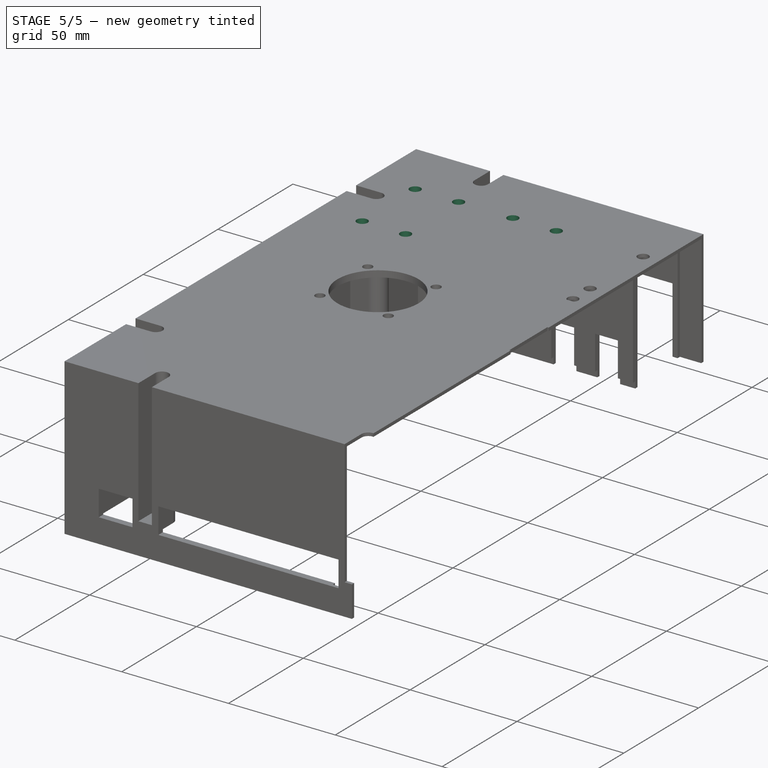
[diagram: stage 5 of 5 — iso view after this stage's code; geometry added in this stage tinted green]
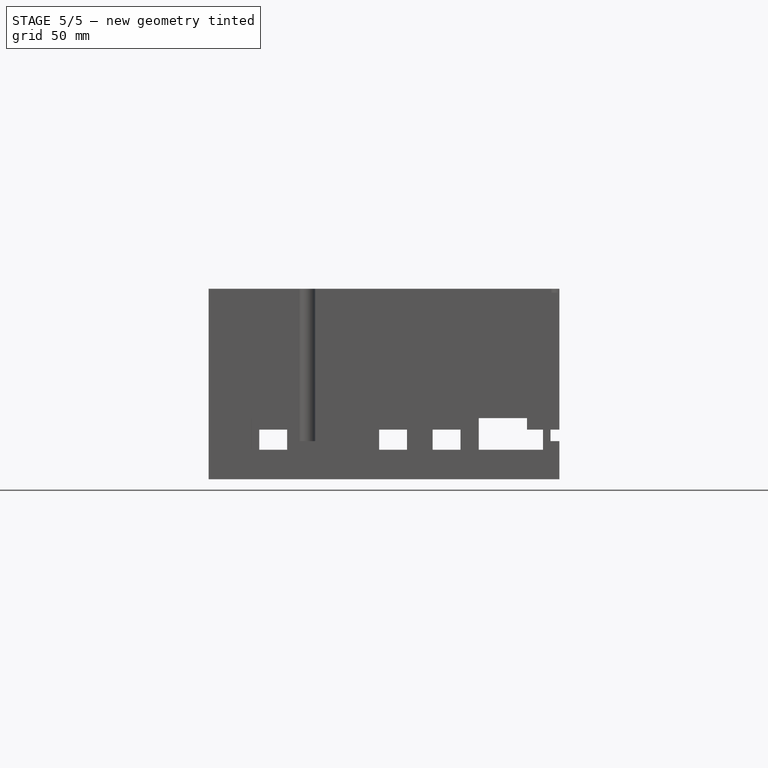
[diagram: stage 5 of 5 — front view after this stage's code; geometry added in this stage tinted green]
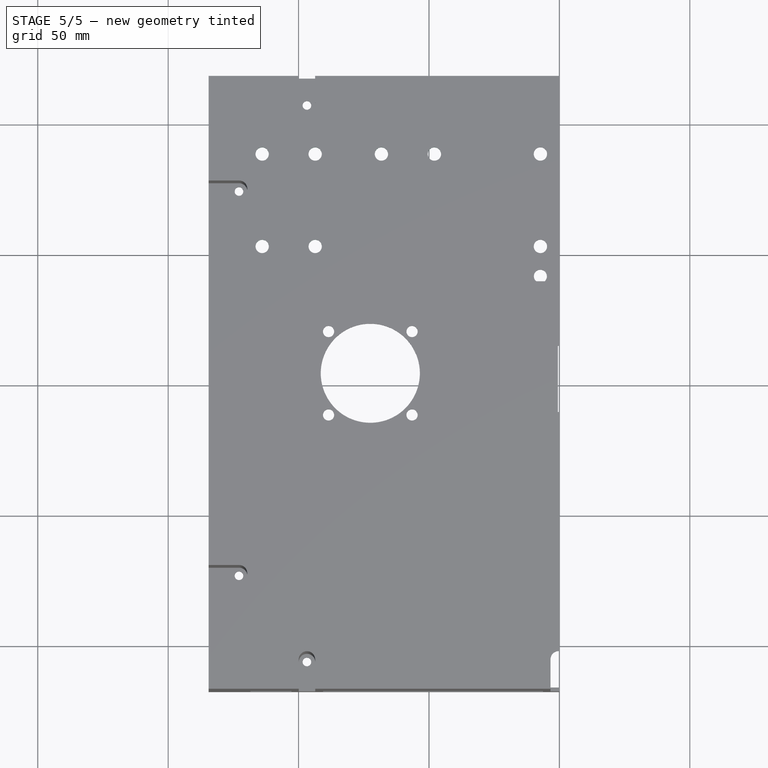
[diagram: stage 5 of 5 — top view after this stage's code; geometry added in this stage tinted green]
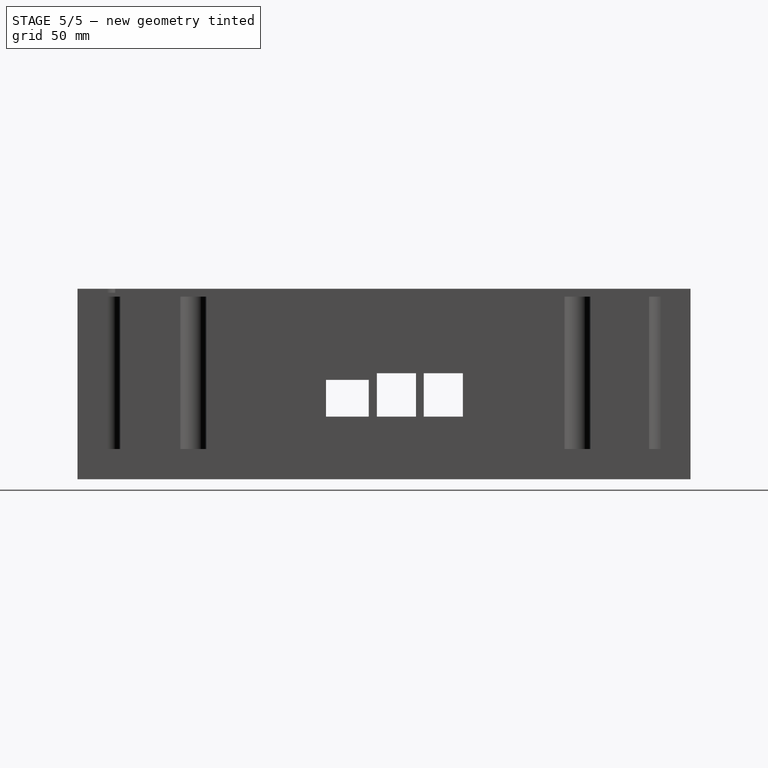
[diagram: stage 5 of 5 — right view after this stage's code; geometry added in this stage tinted green]
FEATURE [Sketcher::SketchObject] Sketch015  label="led_hole_second_pcb"
  FullyConstrained = true
  MapMode = 5
  Placement = pos=(0,0,19.5) rot=(0,0,1;0rad)
  Support = -> [Pocket013]
  sketch-geometry (1):
    g0: Circle CenterX=-7.28 CenterY=52.112 CenterZ=0 NormalX=0 NormalY=0 NormalZ=1 AngleXU=0 Radius=2.55
  constraints (3):
    c: Radius(g0) = 2.55
    c: DistanceX(g0,g-1) = 7.28
    c: DistanceY(g-1,g0) = 52.112
FEATURE [PartDesign::Pocket] Pocket014  label="led_hole_second_pcb_pocket"
  BaseFeature = -> Pocket013
  Length = 3
  Length2 = 100
  Placement = pos=(0,0,19.5) rot=(1,0,0;3.14159rad)
  Profile = -> Sketch015
  Type = 0
FEATURE [Sketcher::SketchObject] Sketch016  label="led_hole_top"
  FullyConstrained = true
  MapMode = 5
  Placement = pos=(0,0,19.5) rot=(0,0,1;0rad)
  Support = -> [Pocket014]
  sketch-geometry (7):
    g0: Circle CenterX=-7.28 CenterY=87.55 CenterZ=0 NormalX=0 NormalY=0 NormalZ=1 AngleXU=0 Radius=2.55
    g1: Circle CenterX=-47.92 CenterY=87.55 CenterZ=0 NormalX=0 NormalY=0 NormalZ=1 AngleXU=0 Radius=2.55
    g2: Circle CenterX=-68.24 CenterY=87.55 CenterZ=0 NormalX=0 NormalY=0 NormalZ=1 AngleXU=0 Radius=2.55
    g3: Circle CenterX=-93.64 CenterY=87.55 CenterZ=0 NormalX=0 NormalY=0 NormalZ=1 AngleXU=0 Radius=2.55
    g4: Circle CenterX=-113.96 CenterY=87.55 CenterZ=0 NormalX=0 NormalY=0 NormalZ=1 AngleXU=0 Radius=2.55
    g5: Circle CenterX=-113.96 CenterY=52.117 CenterZ=0 NormalX=0 NormalY=0 NormalZ=1 AngleXU=0 Radius=2.55
    g6: Circle CenterX=-93.64 CenterY=52.117 CenterZ=0 NormalX=0 NormalY=0 NormalZ=1 AngleXU=0 Radius=2.55
  constraints (21):
    c: Radius(g0) = 2.55
    c: DistanceX(g0,g-1) = 7.28
    c: DistanceY(g-1,g0) = 87.55
    c: Radius(g1) = 2.55
    c: Radius(g2) = 2.55
    c: Radius(g3) = 2.55
    c: Radius(g4) = 2.55
    c: DistanceY(g-1,g1) = 87.55
    c: DistanceY(g-1,g2) = 87.55
    c: DistanceY(g-1,g3) = 87.55
    c: DistanceY(g-1,g4) = 87.55
    c: DistanceX(g1,g0) = 40.64
    c: DistanceX(g2,g1) = 20.32
    c: DistanceX(g3,g2) = 25.4
    c: DistanceX(g4,g3) = 20.32
    c: Radius(g5) = 2.55
    c: Radius(g6) = 2.55
    c: DistanceX(g5,g6) = 20.32
    c: DistanceY(g5,g4) = 35.433
    c: DistanceY(g6,g3) = 35.433
    c: DistanceX(g4,g5) = 0
FEATURE [PartDesign::Pocket] Pocket015  label="led_hole_top_pocket"
  BaseFeature = -> Pocket014
  Length = 3
  Length2 = 100
  Placement = pos=(0,0,19.5) rot=(1,0,0;3.14159rad)
  Profile = -> Sketch016
  Type = 0
FEATURE [Sketcher::SketchObject] Sketch017  label="display_hole"
  FullyConstrained = true
  MapMode = 5
  Placement = pos=(0,0,19.5) rot=(0,0,1;0rad)
  Support = -> [Pocket015]
  sketch-geometry (4):
    g0: LineSegment StartX=0 StartY=14.01 StartZ=0 EndX=-0.6 EndY=14.01 EndZ=0
    g1: LineSegment StartX=-0.6 StartY=14.01 StartZ=0 EndX=-0.6 EndY=-11.39 EndZ=0
    g2: LineSegment StartX=-0.6 StartY=-11.39 StartZ=0 EndX=0 EndY=-11.39 EndZ=0
    g3: LineSegment StartX=0 StartY=-11.39 StartZ=0 EndX=0 EndY=14.01 EndZ=0
  constraints (12):
    c: Coincident(g0,g1)
    c: Coincident(g1,g2)
    c: Coincident(g2,g3)
    c: Coincident(g3,g0)
    c: Horizontal(g0)
    c: Horizontal(g2)
    c: Vertical(g1)
    c: Vertical(g3)
    c: PointOnObject(g0,g-2)
    c: DistanceY(g3,g3) = 25.4
    c: DistanceY(g2,g-1) = 11.39
    c: DistanceX(g0,g-1) = 0.6
FEATURE [PartDesign::Pocket] Pocket016  label="display_hole_pocket"
  BaseFeature = -> Pocket015
  Length = 10
  Length2 = 100
  Placement = pos=(0,0,19.5) rot=(1,0,0;3.14159rad)
  Profile = -> Sketch017
  Type = 0
FEATURE [PartDesign::Body] Body
  Group = -> [Sketch,Pad,Sketch001,Pocket,Sketch003,Sketch004,Pad001,Hole,Sketch005,Sketch006,Sketch007,Pocket003,Sketch008,Pocket005,Pocket006,Sketch009,Pocket007,Pocket008,Sketch010,Pocket009,Sketch011,Pocket010,Sketch012,Pocket011,Sketch013,Pocket012,Sketch014,Pocket013,Sketch015,Pocket014,Sketch016,Pocket015,Sketch017,Pocket016]
  Origin = -> Origin
  Tip = -> Pocket016
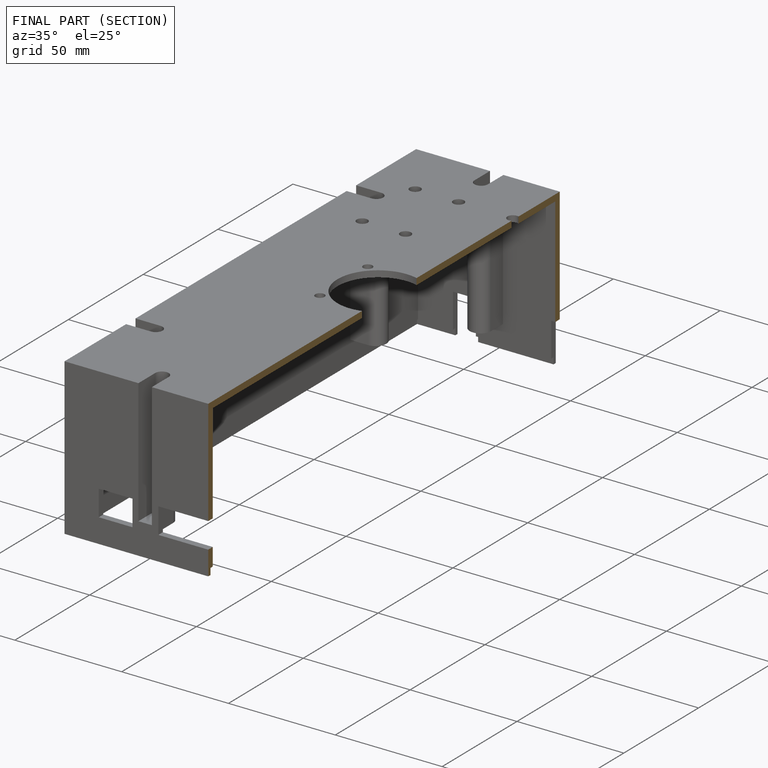
[diagram: finished part — half-section view (interior)]
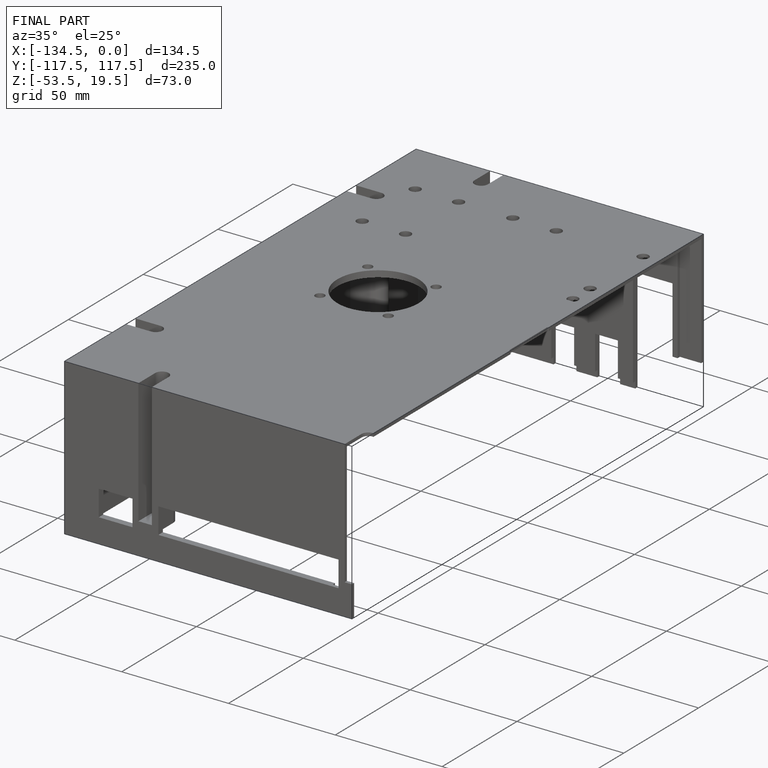
[diagram: finished part — iso view with bounding-box wireframe]
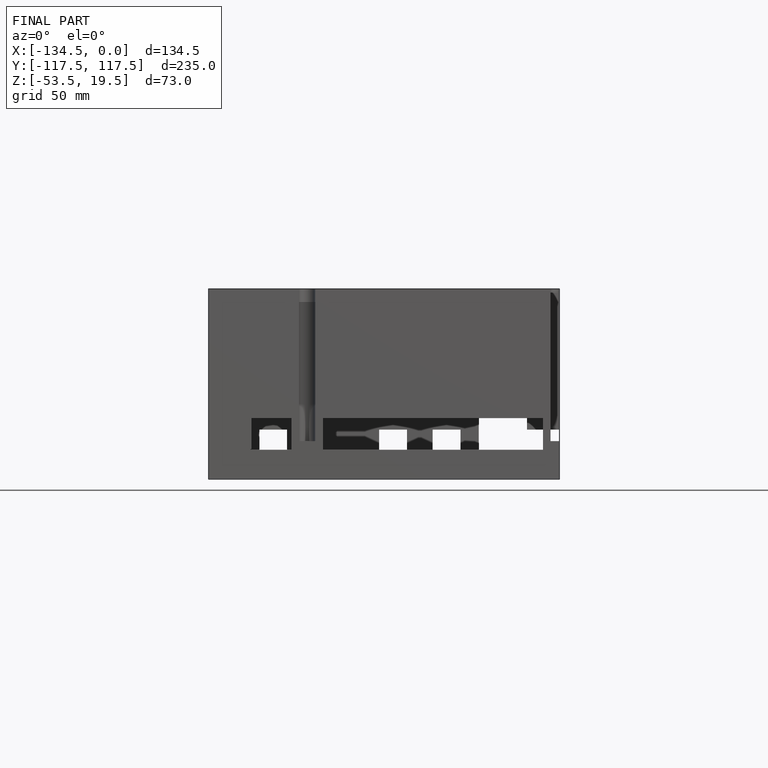
[diagram: finished part — front view with bounding-box wireframe]
